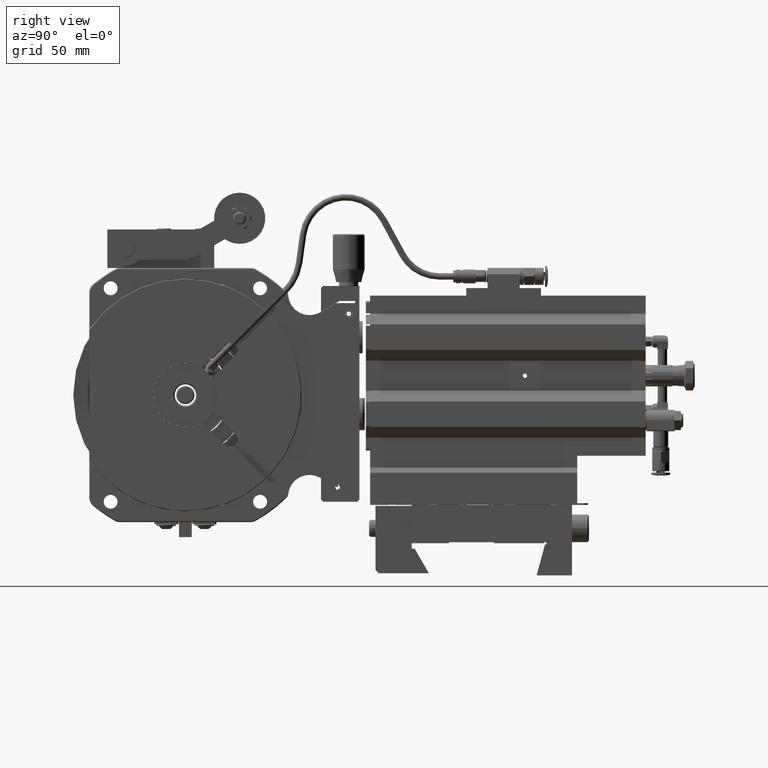
[diagram: clean part render]
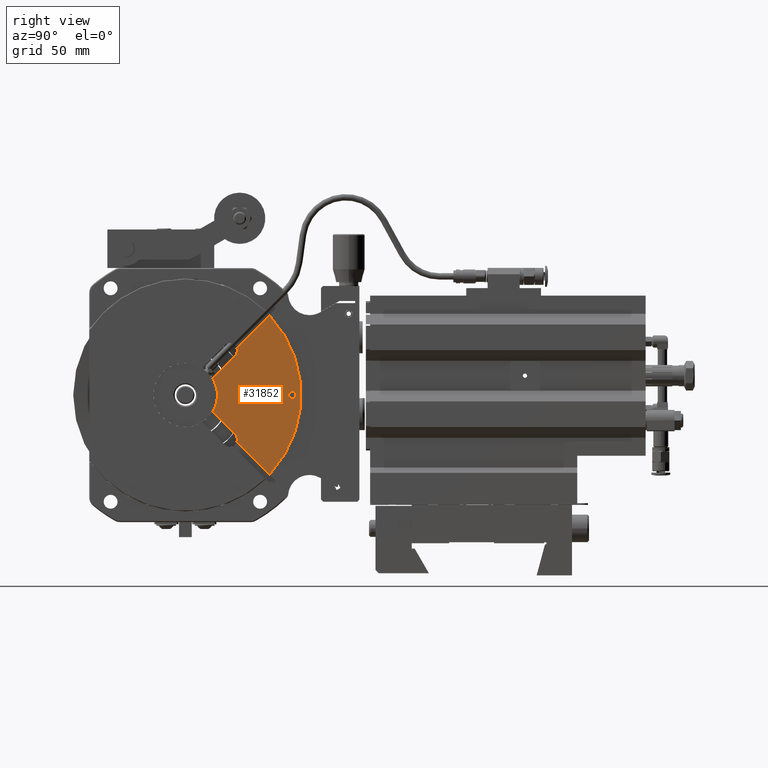
[diagram: same view with one face highlighted and labeled with its STEP entity id]
A machine part, right view. The second image highlights one B-rep face of the part: STEP entity #31852.
In plain terms, the highlighted planar face has unit normal (1, 0, 0).
Its self-contained STEP definition (entity closure, byte-faithful):
#378 = DIRECTION ( 'NONE',  ( 0.000000000000000000, 0.000000000000000000, 1.000000000000000000 ) ) ;
#1545 = CARTESIAN_POINT ( 'NONE',  ( 0.3661417322834993882, 0.03937007874019381876, 7.212526238550921569E-29 ) ) ;
#1657 = ORIENTED_EDGE ( 'NONE', *, *, #57151, .F. ) ;
#1874 = CIRCLE ( 'NONE', #28489, 2.133858267716535639 ) ;
#1938 = DIRECTION ( 'NONE',  ( 0.000000000000000000, 0.000000000000000000, -1.000000000000000000 ) ) ;
#2812 = AXIS2_PLACEMENT_3D ( 'NONE', #12158, #16968, #31817 ) ;
#2952 = CARTESIAN_POINT ( 'NONE',  ( 0.3661417322834992216, 1.586706676184958198, -1.469387818416320046 ) ) ;
#5154 = DIRECTION ( 'NONE',  ( 1.962615573354722348E-17, -0.7071067811865487940, 0.7071067811865461294 ) ) ;
#6185 = VERTEX_POINT ( 'NONE', #7514 ) ;
#6498 = DIRECTION ( 'NONE',  ( -1.962615573354715261E-17, 0.7071067811865462405, 0.7071067811865487940 ) ) ;
#6711 = PLANE ( 'NONE',  #42893 ) ;
#7322 = DIRECTION ( 'NONE',  ( -1.962615573354722348E-17, 0.7071067811865487940, 0.7071067811865461294 ) ) ;
#7451 = ORIENTED_EDGE ( 'NONE', *, *, #47798, .F. ) ;
#7514 = CARTESIAN_POINT ( 'NONE',  ( 0.3661417322834993326, 0.9888920780751182527, -0.8715732203064822103 ) ) ;
#7683 = FACE_BOUND ( 'NONE', #29736, .T. ) ;
#8110 = CARTESIAN_POINT ( 'NONE',  ( 0.3661417322834993326, 0.9580521172896439008, -0.7238100909783574677 ) ) ;
#8742 = VERTEX_POINT ( 'NONE', #33990 ) ;
#10532 = VECTOR ( 'NONE', #7322, 39.37007874015748854 ) ;
#12158 = CARTESIAN_POINT ( 'NONE',  ( 0.3661417322834992216, 2.007874015748067897, 7.214952606984795261E-29 ) ) ;
#12817 = LINE ( 'NONE', #23140, #10532 ) ;
#13834 = EDGE_CURVE ( 'NONE', #56583, #14690, #26018, .T. ) ;
#13929 = CARTESIAN_POINT ( 'NONE',  ( 0.3661417322834993326, 0.9580521172896439008, 0.7238100909783574677 ) ) ;
#14690 = VERTEX_POINT ( 'NONE', #24251 ) ;
#14799 = CARTESIAN_POINT ( 'NONE',  ( 0.3661417322834993326, 0.9189453664890727680, -0.8016265087204371698 ) ) ;
#14869 = VERTEX_POINT ( 'NONE', #2952 ) ;
#15095 = DIRECTION ( 'NONE',  ( 1.000000000000000000, 2.775557561562891351E-17, 0.000000000000000000 ) ) ;
#16968 = DIRECTION ( 'NONE',  ( 1.000000000000000000, 2.775557561562891351E-17, 0.000000000000000000 ) ) ;
#17099 = CARTESIAN_POINT ( 'NONE',  ( 0.3661417322834993326, 0.9580521172896439008, 0.7238100909783574677 ) ) ;
#17292 = CARTESIAN_POINT ( 'NONE',  ( 0.3661417322834993326, 0.5428621813591321121, -0.3086201550478441802 ) ) ;
#18439 = CARTESIAN_POINT ( 'NONE',  ( 0.3661417322834992216, 2.007874015748067897, 7.214952606984795261E-29 ) ) ;
#20560 = VECTOR ( 'NONE', #5154, 39.37007874015748854 ) ;
#21588 = VERTEX_POINT ( 'NONE', #33562 ) ;
#22134 = DIRECTION ( 'NONE',  ( 0.000000000000000000, 0.000000000000000000, 1.000000000000000000 ) ) ;
#22278 = CARTESIAN_POINT ( 'NONE',  ( 0.3661417322834992216, 2.007874015748067897, 0.06496062992125958835 ) ) ;
#23140 = CARTESIAN_POINT ( 'NONE',  ( 0.3661417322834993326, 0.9189453664890727680, 0.8016265087204371698 ) ) ;
#23402 = VECTOR ( 'NONE', #6498, 39.37007874015748143 ) ;
#23437 = EDGE_LOOP ( 'NONE', ( #7451, #25818, #63331, #45079, #61497, #29949, #1657, #45169 ) ) ;
#24178 = CIRCLE ( 'NONE', #57014, 0.1377952755905511584 ) ;
#24251 = CARTESIAN_POINT ( 'NONE',  ( 0.3661417322834993326, 0.5428621813591321121, 0.3086201550478441802 ) ) ;
#25356 = VERTEX_POINT ( 'NONE', #33329 ) ;
#25818 = ORIENTED_EDGE ( 'NONE', *, *, #32053, .F. ) ;
#26018 = CIRCLE ( 'NONE', #33195, 0.5905511811023621549 ) ;
#26404 = CARTESIAN_POINT ( 'NONE',  ( 0.3661417322834993326, 0.03937007874019381876, 7.212526238550921569E-29 ) ) ;
#26644 = DIRECTION ( 'NONE',  ( -1.000000000000000000, -2.775557561562891351E-17, 0.000000000000000000 ) ) ;
#27353 = FACE_OUTER_BOUND ( 'NONE', #23437, .T. ) ;
#27514 = VERTEX_POINT ( 'NONE', #22278 ) ;
#28418 = CARTESIAN_POINT ( 'NONE',  ( 0.3661417322834993326, 1.586706676184958198, 1.469387818416320046 ) ) ;
#28489 = AXIS2_PLACEMENT_3D ( 'NONE', #1545, #26644, #22134 ) ;
#29736 = EDGE_LOOP ( 'NONE', ( #46891, #44367 ) ) ;
#29920 = VECTOR ( 'NONE', #47377, 39.37007874015748143 ) ;
#29949 = ORIENTED_EDGE ( 'NONE', *, *, #13834, .F. ) ;
#30567 = CIRCLE ( 'NONE', #2812, 0.06496062992125958835 ) ;
#31023 = VERTEX_POINT ( 'NONE', #28418 ) ;
#31817 = DIRECTION ( 'NONE',  ( 0.000000000000000000, 0.000000000000000000, -1.000000000000000000 ) ) ;
#31852 = ADVANCED_FACE ( 'NONE', ( #7683, #27353 ), #6711, .T. ) ;
#32053 = EDGE_CURVE ( 'NONE', #31023, #14869, #1874, .T. ) ;
#32629 = LINE ( 'NONE', #8110, #29920 ) ;
#33195 = AXIS2_PLACEMENT_3D ( 'NONE', #45633, #15095, #35401 ) ;
#33329 = CARTESIAN_POINT ( 'NONE',  ( 0.3661417322834992216, 2.007874015748067897, -0.06496062992125958835 ) ) ;
#33562 = CARTESIAN_POINT ( 'NONE',  ( 0.3661417322834993326, 0.9580521172896439008, -0.7238100909783574677 ) ) ;
#33990 = CARTESIAN_POINT ( 'NONE',  ( 0.3661417322834993326, 0.9888920780751182527, 0.8715732203064822103 ) ) ;
#35401 = DIRECTION ( 'NONE',  ( 0.000000000000000000, 0.000000000000000000, -1.000000000000000000 ) ) ;
#37090 = VERTEX_POINT ( 'NONE', #13929 ) ;
#40153 = EDGE_CURVE ( 'NONE', #8742, #31023, #12817, .T. ) ;
#41595 = EDGE_CURVE ( 'NONE', #6185, #21588, #48776, .T. ) ;
#42893 = AXIS2_PLACEMENT_3D ( 'NONE', #26404, #45970, #1938 ) ;
#43532 = DIRECTION ( 'NONE',  ( 0.000000000000000000, 0.000000000000000000, -1.000000000000000000 ) ) ;
#44367 = ORIENTED_EDGE ( 'NONE', *, *, #45138, .F. ) ;
#44644 = AXIS2_PLACEMENT_3D ( 'NONE', #49832, #51678, #60138 ) ;
#45079 = ORIENTED_EDGE ( 'NONE', *, *, #62385, .F. ) ;
#45138 = EDGE_CURVE ( 'NONE', #25356, #27514, #30567, .T. ) ;
#45169 = ORIENTED_EDGE ( 'NONE', *, *, #41595, .F. ) ;
#45633 = CARTESIAN_POINT ( 'NONE',  ( 0.3661417322834993326, 0.03937007874019381876, 7.212526238550921569E-29 ) ) ;
#45970 = DIRECTION ( 'NONE',  ( 1.000000000000000000, 2.775557561562891351E-17, 0.000000000000000000 ) ) ;
#46865 = CIRCLE ( 'NONE', #49963, 0.06496062992125958835 ) ;
#46891 = ORIENTED_EDGE ( 'NONE', *, *, #54472, .F. ) ;
#47377 = DIRECTION ( 'NONE',  ( 1.962615573354715261E-17, -0.7071067811865462405, 0.7071067811865487940 ) ) ;
#47798 = EDGE_CURVE ( 'NONE', #14869, #6185, #50163, .T. ) ;
#48776 = CIRCLE ( 'NONE', #44644, 0.1377952755905511584 ) ;
#49249 = DIRECTION ( 'NONE',  ( 1.000000000000000000, 2.775557561562891351E-17, 0.000000000000000000 ) ) ;
#49832 = CARTESIAN_POINT ( 'NONE',  ( 0.3661417322834993326, 0.8606161435040957652, -0.8212460647639051592 ) ) ;
#49963 = AXIS2_PLACEMENT_3D ( 'NONE', #18439, #52283, #43532 ) ;
#50163 = LINE ( 'NONE', #14799, #20560 ) ;
#51678 = DIRECTION ( 'NONE',  ( 1.000000000000000000, 2.775557561562891351E-17, 0.000000000000000000 ) ) ;
#52283 = DIRECTION ( 'NONE',  ( 1.000000000000000000, 2.775557561562891351E-17, 0.000000000000000000 ) ) ;
#54472 = EDGE_CURVE ( 'NONE', #27514, #25356, #46865, .T. ) ;
#55437 = EDGE_CURVE ( 'NONE', #14690, #37090, #55745, .T. ) ;
#55745 = LINE ( 'NONE', #17099, #23402 ) ;
#56583 = VERTEX_POINT ( 'NONE', #17292 ) ;
#57014 = AXIS2_PLACEMENT_3D ( 'NONE', #59236, #49249, #378 ) ;
#57151 = EDGE_CURVE ( 'NONE', #21588, #56583, #32629, .T. ) ;
#59236 = CARTESIAN_POINT ( 'NONE',  ( 0.3661417322834993326, 0.8606161435040957652, 0.8212460647639051592 ) ) ;
#60138 = DIRECTION ( 'NONE',  ( 0.000000000000000000, 0.000000000000000000, -1.000000000000000000 ) ) ;
#61497 = ORIENTED_EDGE ( 'NONE', *, *, #55437, .F. ) ;
#62385 = EDGE_CURVE ( 'NONE', #37090, #8742, #24178, .T. ) ;
#63331 = ORIENTED_EDGE ( 'NONE', *, *, #40153, .F. ) ;